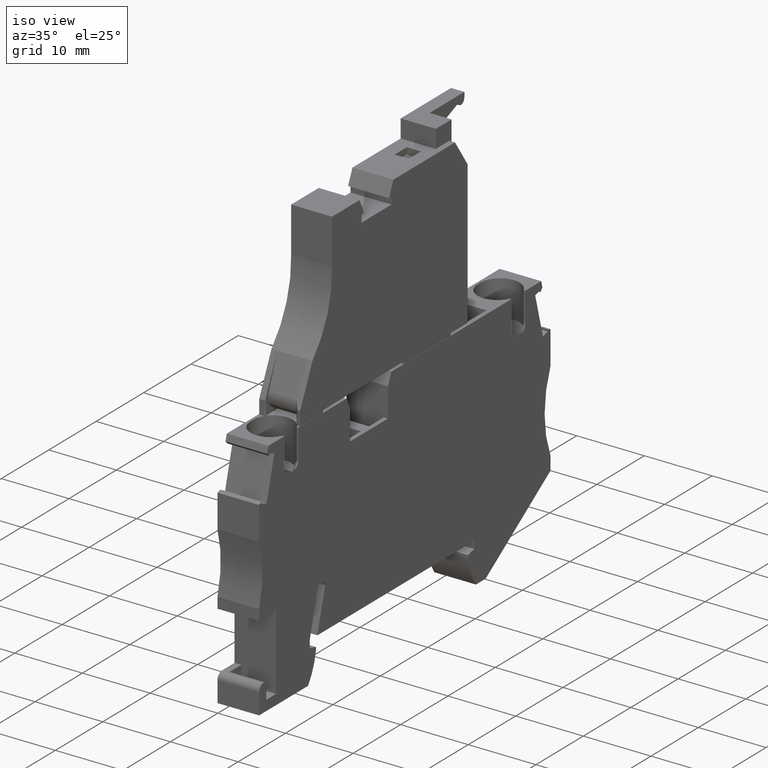
[diagram: clean part render]
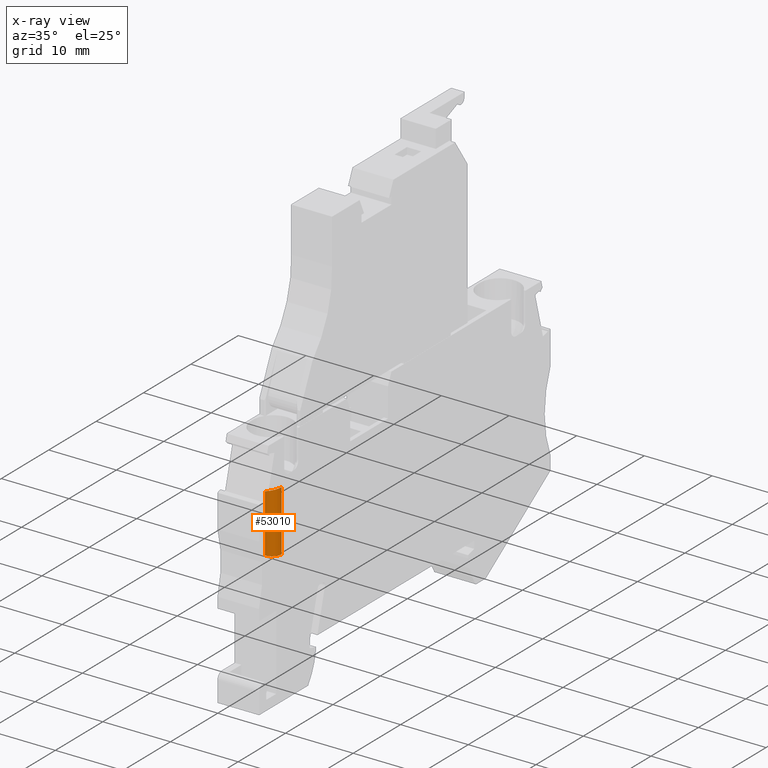
[diagram: x-ray — body ghosted, one internal face saturated and labeled with its STEP entity id]
A machine part, iso view, then the same camera in x-ray: the body is ghosted and one INTERNAL B-rep face — a face not visible from any outside direction — is saturated and labeled: STEP entity #53010.
In plain terms, the highlighted cylindrical surface (edge-blend (fillet) strip) has radius 1.45 mm, axis along (-0, -0, -1).
Its self-contained STEP definition (entity closure, byte-faithful):
#49220=CARTESIAN_POINT('',(-41.0000000000009,15.352364793528,-1.9));
#49230=DIRECTION('',(0.,1.,3.81297239038848E-16));
#49240=DIRECTION('',(-1.66533453693773E-16,-4.97899625051481E-17,-1.));
#49250=AXIS2_PLACEMENT_3D('',#49220,#49230,#49240);
#49260=CONICAL_SURFACE('',#49250,3.76281181189991,0.493941368919581);
#50760=CARTESIAN_POINT('',(-42.4500000000009,11.0893699668681,
-1.67499999999919));
#50770=VERTEX_POINT('',#50760);
#50800=CARTESIAN_POINT('',(-41.0000000000009,-6.67785114815208,-1.675));
#50810=DIRECTION('',(1.11022302462516E-16,-1.,1.11022302462516E-16));
#50820=DIRECTION('',(-1.,-1.11022302462516E-16,0.));
#50830=AXIS2_PLACEMENT_3D('',#50800,#50810,#50820);
#50840=CYLINDRICAL_SURFACE('',#50830,1.45);
#50850=CARTESIAN_POINT('',(-41.000000000001,11.4749999999996,
-0.225000000000004));
#50860=CARTESIAN_POINT('',(-41.0239904114971,11.4749999999996,
-0.225000000000006));
#50870=CARTESIAN_POINT('',(-41.048002980411,11.4748516350218,
-0.225594771228251));
#50880=CARTESIAN_POINT('',(-41.0720523391541,11.4745530996145,
-0.226791292519435));
#50890=CARTESIAN_POINT('',(-41.0960969082085,11.4742546236637,
-0.227987575510518));
#50900=CARTESIAN_POINT('',(-41.1201576262487,11.473806042412,
-0.229785348151329));
#50910=CARTESIAN_POINT('',(-41.1441883924061,11.4732065947007,
-0.232186877140499));
#50920=CARTESIAN_POINT('',(-41.1682190860863,11.4726071487973,
-0.234588398886623));
#50930=CARTESIAN_POINT('',(-41.1922194411393,11.4718568390901,
-0.237593665627062));
#50940=CARTESIAN_POINT('',(-41.2161417888825,11.4709560317651,
-0.241199899881772));
#50950=CARTESIAN_POINT('',(-41.240064100778,11.47005522579,
-0.244806128732534));
#50960=CARTESIAN_POINT('',(-41.2639080092989,11.4690039332005,
-0.249013278939062));
#50970=CARTESIAN_POINT('',(-41.2876256261404,11.4678036979369,
-0.253813348223445));
#50980=CARTESIAN_POINT('',(-41.3113432418092,11.4666034627326,
-0.258613417270507));
#50990=CARTESIAN_POINT('',(-41.3349341718577,11.4652543038639,
-0.264006325935599));
#51000=CARTESIAN_POINT('',(-41.3583515892233,11.4637589266554,
-0.269978954427455));
#51010=CARTESIAN_POINT('',(-41.3817690391288,11.462263547369,
-0.275951591218637));
#51020=CARTESIAN_POINT('',(-41.405012595267,11.4606219762187,
-0.282503837541999));
#51030=CARTESIAN_POINT('',(-41.4280377058666,11.4588379982749,
-0.289617842486354));
#51040=CARTESIAN_POINT('',(-41.4510628827332,11.4570540151967,
-0.29673186790503));
#51050=CARTESIAN_POINT('',(-41.4738692562443,11.4551276585226,
-0.304407514252809));
#51060=CARTESIAN_POINT('',(-41.4964156971467,11.4530636446468,
-0.312622865860112));
#51070=CARTESIAN_POINT('',(-41.5189636811119,11.4509994895113,
-0.320838779720402));
#51080=CARTESIAN_POINT('',(-41.5412452549732,11.4487983435016,
-0.329591745234114));
#51090=CARTESIAN_POINT('',(-41.5632412251058,11.446463798147,
-0.338864032988321));
#51100=CARTESIAN_POINT('',(-41.5852520986277,11.4441276710191,
-0.348142603189394));
#51110=CARTESIAN_POINT('',(-41.6070710226123,11.4416479060222,
-0.357981154390664));
#51120=CARTESIAN_POINT('',(-41.628657951407,11.4390266083209,
-0.368367235932841));
#51130=CARTESIAN_POINT('',(-41.6502447957027,11.4364053208804,
-0.378753276820105));
#51140=CARTESIAN_POINT('',(-41.6715993303122,11.4336425277553,
-0.389686735286764));
#51150=CARTESIAN_POINT('',(-41.6926809739373,11.4307414726692,
-0.40115029601351));
#51160=CARTESIAN_POINT('',(-41.713762565826,11.4278404247026,
-0.412613828607566));
#51170=CARTESIAN_POINT('',(-41.7345709501577,11.424801150399,
-0.424607315825796));
#51180=CARTESIAN_POINT('',(-41.7550663284554,11.4216280222428,
-0.437108712513836));
#51190=CARTESIAN_POINT('',(-41.7755616842341,11.418454897573,
-0.449610095466147));
#51200=CARTESIAN_POINT('',(-41.7957437251091,11.4151479621231,
-0.462619210478166));
#51210=CARTESIAN_POINT('',(-41.8155745879182,11.4117126542236,
-0.476109641567052));
#51220=CARTESIAN_POINT('',(-41.8354054546304,11.408277345648,
-0.489600075311102));
#51230=CARTESIAN_POINT('',(-41.8548848503383,11.4047137139279,
-0.503571623353659));
#51240=CARTESIAN_POINT('',(-41.8739778381812,11.4010281503025,
-0.517994062949683));
#51250=CARTESIAN_POINT('',(-41.8930708543285,11.3973425812134,
-0.532416523926256));
#51260=CARTESIAN_POINT('',(-41.911777192719,11.3935351344777,
-0.547289656015413));
#51270=CARTESIAN_POINT('',(-41.9300656776804,11.3896129915803,
-0.562580189315915));
#51280=CARTESIAN_POINT('',(-41.9666476532583,11.3817676322743,
-0.593165441016676));
#51290=CARTESIAN_POINT('',(-42.0015350267756,11.3734676201642,
-0.625404008329953));
#51300=CARTESIAN_POINT('',(-42.0345784805551,11.3647647889454,
-0.659053462246085));
#51310=CARTESIAN_POINT('',(-42.0511209084951,11.3604079211896,
-0.675899269901233));
#51320=CARTESIAN_POINT('',(-42.0672726833724,11.3559314859578,
-0.693170690468608));
#51330=CARTESIAN_POINT('',(-42.0830047748829,11.3513405781935,
-0.710841995530498));
#51340=CARTESIAN_POINT('',(-42.0987368140802,11.3467496856953,
-0.728513241830649));
#51350=CARTESIAN_POINT('',(-42.1140489651319,11.3420443668826,
-0.746584185363901));
#51360=CARTESIAN_POINT('',(-42.12891349552,11.3372307812454,
-0.765025099447913));
#51370=CARTESIAN_POINT('',(-42.1437779946608,11.3324172057271,
-0.783465974766641));
#51380=CARTESIAN_POINT('',(-42.1581946786574,11.3274954165239,
-0.80227660754118));
#51390=CARTESIAN_POINT('',(-42.172138077744,11.3224725379398,
-0.821423801465518));
#51400=CARTESIAN_POINT('',(-42.1860814633741,11.3174496642032,
-0.840570976911319));
#51410=CARTESIAN_POINT('',(-42.1995513851991,11.3123257595933,
-0.860054481226856));
#51420=CARTESIAN_POINT('',(-42.2125254044211,11.3071087826658,
-0.87983829088957));
#51430=CARTESIAN_POINT('',(-42.2254994252054,11.3018918051101,
-0.899622102934602));
#51440=CARTESIAN_POINT('',(-42.2379773841309,11.2965818176434,
-0.919705975128057));
#51450=CARTESIAN_POINT('',(-42.2499404553573,11.2911874532263,
-0.940051799061131));
#51460=CARTESIAN_POINT('',(-42.2619035408566,11.2857930823733,
-0.960397647268292));
#51470=CARTESIAN_POINT('',(-42.2733516022038,11.2803143994544,
-0.981005195113221));
#51480=CARTESIAN_POINT('',(-42.2842698306074,11.2747605221454,
-1.00183508544057));
#51490=CARTESIAN_POINT('',(-42.2951880840522,11.2692066320985,
-1.02266502354169));
#51500=CARTESIAN_POINT('',(-42.3055763934447,11.2635776135935,
-1.04371705109064));
#51510=CARTESIAN_POINT('',(-42.3154241968222,11.2578828473387,
-1.06495149175092));
#51520=CARTESIAN_POINT('',(-42.3252720472479,11.252188053877,
-1.08618603385931));
#51530=CARTESIAN_POINT('',(-42.3345792562378,11.2464276111377,
-1.10760261875969));
#51540=CARTESIAN_POINT('',(-42.3433397047352,11.2406108116157,
-1.12916262707266));
#51550=CARTESIAN_POINT('',(-42.3521012951082,11.2347932539065,
-1.15072544561237));
#51560=CARTESIAN_POINT('',(-42.3603558068473,11.2288929118288,
-1.17252964506361));
#51570=CARTESIAN_POINT('',(-42.3680868245856,11.2229169023244,
-1.1945435083198));
#51580=CARTESIAN_POINT('',(-42.3758178181743,11.2169409114874,
-1.21655730281072));
#51590=CARTESIAN_POINT('',(-42.3830252192986,11.2108893060236,
-1.2387805568357));
#51600=CARTESIAN_POINT('',(-42.38969489541,11.2047701425042,
-1.26117866455016));
#51610=CARTESIAN_POINT('',(-42.396364557628,11.1986509917314,
-1.28357672560809));
#51620=CARTESIAN_POINT('',(-42.4024964117575,11.1924643409159,
-1.30614941914122));
#51630=CARTESIAN_POINT('',(-42.4080792121204,11.1862190347862,
-1.32885995262608));
#51640=CARTESIAN_POINT('',(-42.4136620062448,11.1799737356354,
-1.35157046073301));
#51650=CARTESIAN_POINT('',(-42.4186956807619,11.1736698428729,
-1.37441857678284));
#51660=CARTESIAN_POINT('',(-42.4231722978635,11.1673168249199,
-1.39736604927444));
#51670=CARTESIAN_POINT('',(-42.4276489140712,11.1609638082354,
-1.42031351718408));
#51680=CARTESIAN_POINT('',(-42.4315684253896,11.1545617303688,
-1.44336010424525));
#51690=CARTESIAN_POINT('',(-42.434926452411,11.1481205063828,
-1.46646684634607));
#51700=CARTESIAN_POINT('',(-42.4382844817854,11.1416792778836,
-1.48957360463708));
#51710=CARTESIAN_POINT('',(-42.4410809983788,11.1351989682745,
-1.51274028048996));
#51720=CARTESIAN_POINT('',(-42.4433152697063,11.1286897487457,
-1.53592796026958));
#51730=CARTESIAN_POINT('',(-42.4455495446428,11.1221805187023,
-1.55911567750471));
#51740=CARTESIAN_POINT('',(-42.4472215650614,11.1156424434573,
-1.5823241659132));
#51750=CARTESIAN_POINT('',(-42.4483341749945,11.1090857447609,
-1.60551534309414));
#51760=CARTESIAN_POINT('',(-42.4494467877937,11.1025290291753,
-1.62870658001247));
#51770=CARTESIAN_POINT('',(-42.4500000000009,11.0959537532122,
-1.65188028265684));
#51780=CARTESIAN_POINT('',(-42.4500000000009,11.0893699668681,
-1.67499999999919));
#51790=B_SPLINE_CURVE_WITH_KNOTS('',3,(#50850,#50860,#50870,#50880,
#50890,#50900,#50910,#50920,#50930,#50940,#50950,#50960,#50970,#50980,
#50990,#51000,#51010,#51020,#51030,#51040,#51050,#51060,#51070,#51080,
#51090,#51100,#51110,#51120,#51130,#51140,#51150,#51160,#51170,#51180,
#51190,#51200,#51210,#51220,#51230,#51240,#51250,#51260,#51270,#51280,
#51290,#51300,#51310,#51320,#51330,#51340,#51350,#51360,#51370,#51380,
#51390,#51400,#51410,#51420,#51430,#51440,#51450,#51460,#51470,#51480,
#51490,#51500,#51510,#51520,#51530,#51540,#51550,#51560,#51570,#51580,
#51590,#51600,#51610,#51620,#51630,#51640,#51650,#51660,#51670,#51680,
#51690,#51700,#51710,#51720,#51730,#51740,#51750,#51760,#51770,#51780),
.UNSPECIFIED.,.F.,.F.,(4,3,3,3,3,3,3,3,3,3,3,3,3,3,3,3,3,3,3,3,3,3,3,3,3
,3,3,3,3,3,3,4),(0.,0.0720838712600145,0.144441928845911,
0.217000558277583,0.289665151024441,0.362335731031604,0.434911277361456,
0.507294009675636,0.579397549860424,0.65155160521788,0.72396318687816,
0.796551857964855,0.869227528478261,0.941894645701447,1.01445610406686,
1.15890107086033,1.23107035897227,1.30348270849949,1.37606387773022,
1.44873072627493,1.52139480598222,1.59396571525458,1.66635441775062,
1.7384768041521,1.81059556424668,1.88296561939692,1.95551803559448,
2.02817578484184,2.10085688626348,2.17347732314763,2.2459538915136,
2.31820713919578),.UNSPECIFIED.);
#51800=SURFACE_CURVE('',#51790,(#50840,#49260),.CURVE_3D.);
#51810=CARTESIAN_POINT('',(-41.000000000001,11.4749999999996,
-0.225000000000005));
#51820=VERTEX_POINT('',#51810);
#51830=EDGE_CURVE('',#51820,#50770,#51800,.T.);
#52080=CARTESIAN_POINT('',(-41.0000000000009,2.49999999999941,-1.675));
#52090=DIRECTION('',(1.11022302462516E-16,-1.,1.11022302462516E-16));
#52100=DIRECTION('',(-1.,-1.11022302462516E-16,0.));
#52110=AXIS2_PLACEMENT_3D('',#52080,#52090,#52100);
#52120=CIRCLE('',#52110,1.45);
#52130=CARTESIAN_POINT('',(-41.0000000000009,2.49999999999941,
-0.225000000000004));
#52140=VERTEX_POINT('',#52130);
#52150=CARTESIAN_POINT('',(-42.4500000000009,2.49999999999941,-1.675));
#52160=VERTEX_POINT('',#52150);
#52170=EDGE_CURVE('',#52140,#52160,#52120,.T.);
#52720=CARTESIAN_POINT('',(-42.4500000000009,-6.67785114815208,-1.675));
#52730=DIRECTION('',(1.11022302462516E-16,-1.,1.11022302462516E-16));
#52740=VECTOR('',#52730,1.);
#52750=LINE('',#52720,#52740);
#52760=EDGE_CURVE('',#50770,#52160,#52750,.T.);
#52900=ORIENTED_EDGE('',*,*,#51830,.F.);
#52910=ORIENTED_EDGE('',*,*,#52760,.F.);
#52920=ORIENTED_EDGE('',*,*,#52170,.T.);
#52930=CARTESIAN_POINT('',(-41.0000000000009,-6.67785114815208,
-0.225000000000003));
#52940=DIRECTION('',(1.11022302462516E-16,-1.,1.11022302462516E-16));
#52950=VECTOR('',#52940,1.);
#52960=LINE('',#52930,#52950);
#52970=EDGE_CURVE('',#51820,#52140,#52960,.T.);
#52980=ORIENTED_EDGE('',*,*,#52970,.T.);
#52990=EDGE_LOOP('',(#52980,#52920,#52910,#52900));
#53000=FACE_OUTER_BOUND('',#52990,.T.);
#53010=ADVANCED_FACE('',(#53000),#50840,.F.);